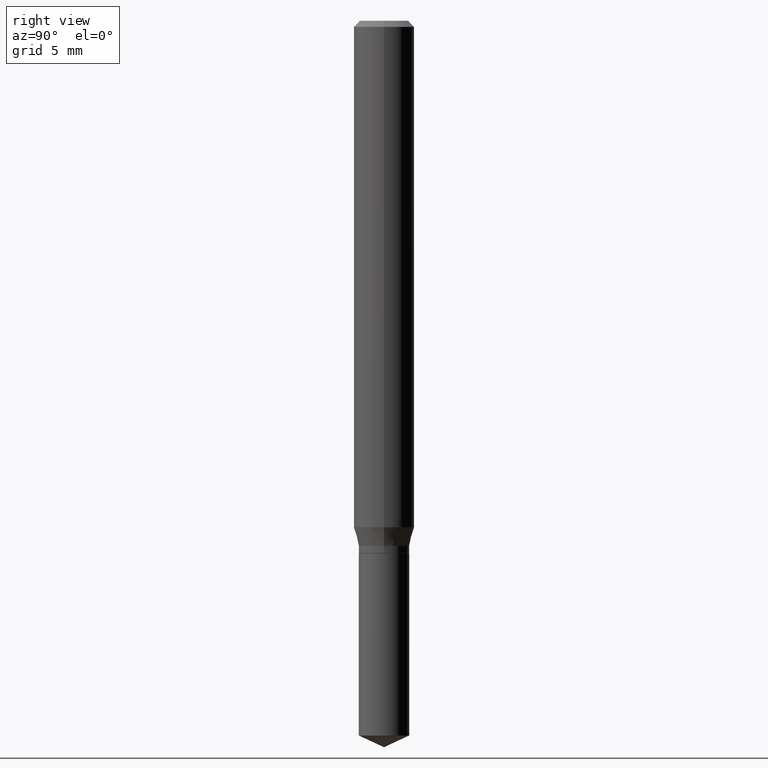
[diagram: clean part render]
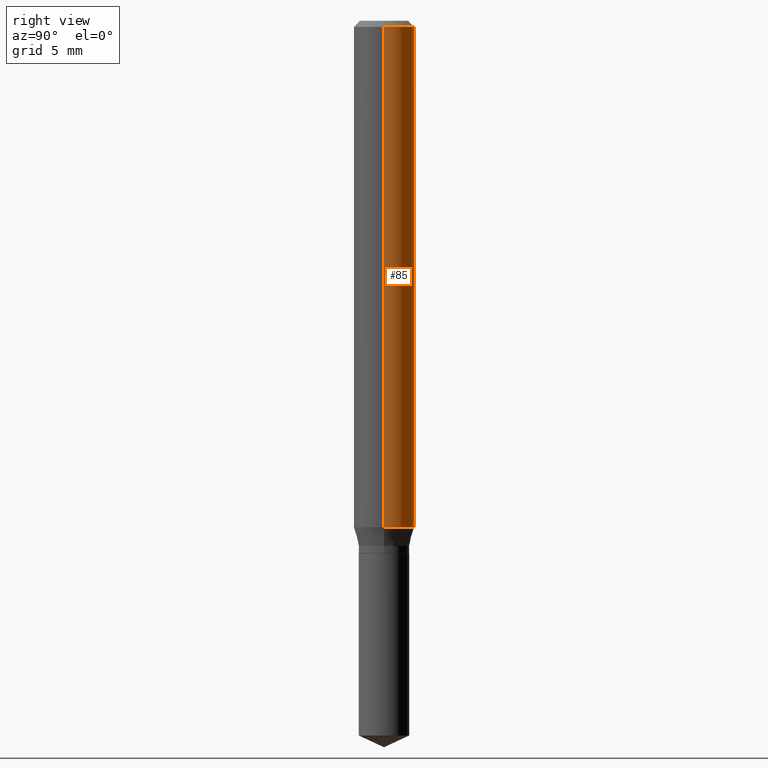
[diagram: same view with one face highlighted and labeled with its STEP entity id]
A machine part, right view. The second image highlights one B-rep face of the part: STEP entity #85.
In plain terms, the highlighted cylindrical surface (edge-blend (fillet) strip) has radius 1.5875 mm, axis along (-0, 0, 1).
Its self-contained STEP definition (entity closure, byte-faithful):
#35 = DIRECTION ( 'NONE',  ( -2.445468806185136597E-29, 3.491481338843145583E-15, 1.000000000000000000 ) ) ;
#42 = DIRECTION ( 'NONE',  ( 1.000000000000000000, -6.982962677686266711E-15, 0.000000000000000000 ) ) ;
#43 = ORIENTED_EDGE ( 'NONE', *, *, #341, .T. ) ;
#68 = CARTESIAN_POINT ( 'NONE',  ( 0.06250000000000000000, -4.800786840909313294E-16, -0.01250000000000008916 ) ) ;
#69 = EDGE_CURVE ( 'NONE', #121, #135, #334, .T. ) ;
#85 = ADVANCED_FACE ( 'NONE', ( #487 ), #485, .T. ) ;
#91 = VECTOR ( 'NONE', #142, 39.37007874015748143 ) ;
#110 = CARTESIAN_POINT ( 'NONE',  ( 0.000000000000000000, 0.000000000000000000, 0.000000000000000000 ) ) ;
#121 = VERTEX_POINT ( 'NONE', #406 ) ;
#135 = VERTEX_POINT ( 'NONE', #68 ) ;
#142 = DIRECTION ( 'NONE',  ( -2.445468806185136877E-29, 3.491481338843145188E-15, 1.000000000000000000 ) ) ;
#144 = CARTESIAN_POINT ( 'NONE',  ( 0.06250000000000006939, -4.364351673553921624E-16, 3.047610484872463374E-30 ) ) ;
#203 = VERTEX_POINT ( 'NONE', #348 ) ;
#204 = CARTESIAN_POINT ( 'NONE',  ( -0.06250000000000012490, -3.207208661476446023E-15, -1.045773274141661879 ) ) ;
#211 = VECTOR ( 'NONE', #419, 39.37007874015748143 ) ;
#213 = DIRECTION ( 'NONE',  ( 1.000000000000000000, -6.982962677686264344E-15, 0.000000000000000000 ) ) ;
#216 = EDGE_CURVE ( 'NONE', #135, #203, #483, .T. ) ;
#224 = AXIS2_PLACEMENT_3D ( 'NONE', #110, #438, #293 ) ;
#236 = CARTESIAN_POINT ( 'NONE',  ( -0.06250000000000006939, 4.440892098500631092E-16, -3.074334431409319267E-30 ) ) ;
#284 = ORIENTED_EDGE ( 'NONE', *, *, #69, .F. ) ;
#293 = DIRECTION ( 'NONE',  ( 1.000000000000000000, -6.982962677686266711E-15, 4.876176775795935793E-29 ) ) ;
#294 = AXIS2_PLACEMENT_3D ( 'NONE', #311, #359, #213 ) ;
#311 = CARTESIAN_POINT ( 'NONE',  ( 2.557405920255531666E-29, -3.651297871326509428E-15, -1.045773274141661879 ) ) ;
#334 = LINE ( 'NONE', #144, #91 ) ;
#341 = EDGE_CURVE ( 'NONE', #420, #203, #378, .T. ) ;
#348 = CARTESIAN_POINT ( 'NONE',  ( -0.06250000000000000000, -1.403381484180960498E-15, -0.01250000000000008916 ) ) ;
#349 = ORIENTED_EDGE ( 'NONE', *, *, #216, .F. ) ;
#359 = DIRECTION ( 'NONE',  ( -2.445468806185136597E-29, 3.491481338843145583E-15, 1.000000000000000000 ) ) ;
#360 = AXIS2_PLACEMENT_3D ( 'NONE', #387, #35, #42 ) ;
#361 = ORIENTED_EDGE ( 'NONE', *, *, #410, .T. ) ;
#378 = LINE ( 'NONE', #236, #211 ) ;
#387 = CARTESIAN_POINT ( 'NONE',  ( 3.056836007731442729E-31, -4.364351673553962300E-17, -0.01250000000000008916 ) ) ;
#406 = CARTESIAN_POINT ( 'NONE',  ( 0.06250000000000012490, -4.087733038681901886E-15, -1.045773274141661879 ) ) ;
#410 = EDGE_CURVE ( 'NONE', #121, #420, #486, .T. ) ;
#419 = DIRECTION ( 'NONE',  ( -2.445468806185136877E-29, 3.491481338843145188E-15, 1.000000000000000000 ) ) ;
#420 = VERTEX_POINT ( 'NONE', #204 ) ;
#438 = DIRECTION ( 'NONE',  ( -2.445468806185136597E-29, 3.491481338843145583E-15, 1.000000000000000000 ) ) ;
#452 = EDGE_LOOP ( 'NONE', ( #361, #43, #349, #284 ) ) ;
#483 = CIRCLE ( 'NONE', #360, 0.06250000000000000000 ) ;
#485 = CYLINDRICAL_SURFACE ( 'NONE', #224, 0.06250000000000006939 ) ;
#486 = CIRCLE ( 'NONE', #294, 0.06250000000000012490 ) ;
#487 = FACE_OUTER_BOUND ( 'NONE', #452, .T. ) ;